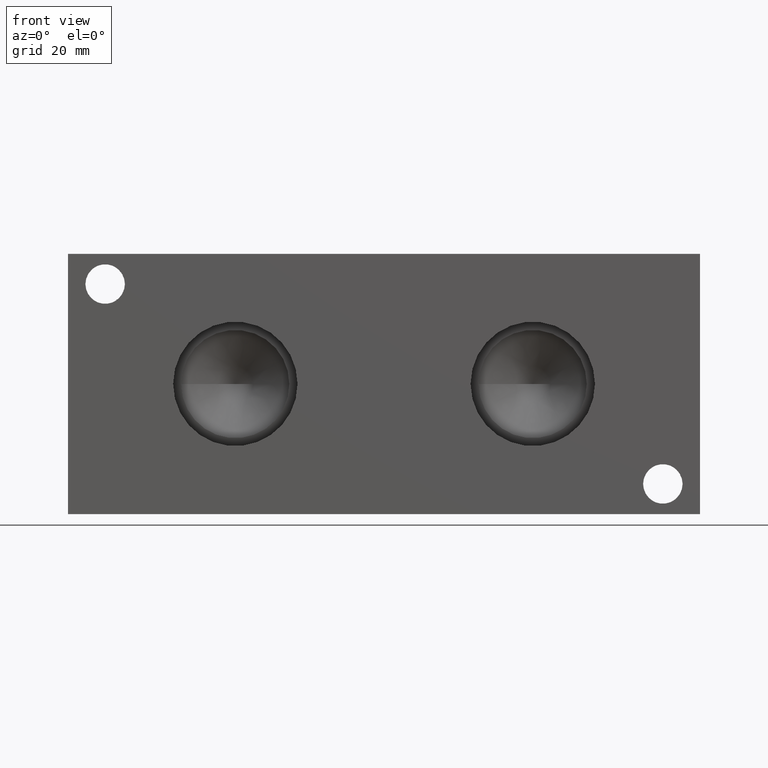
[diagram: clean part render]
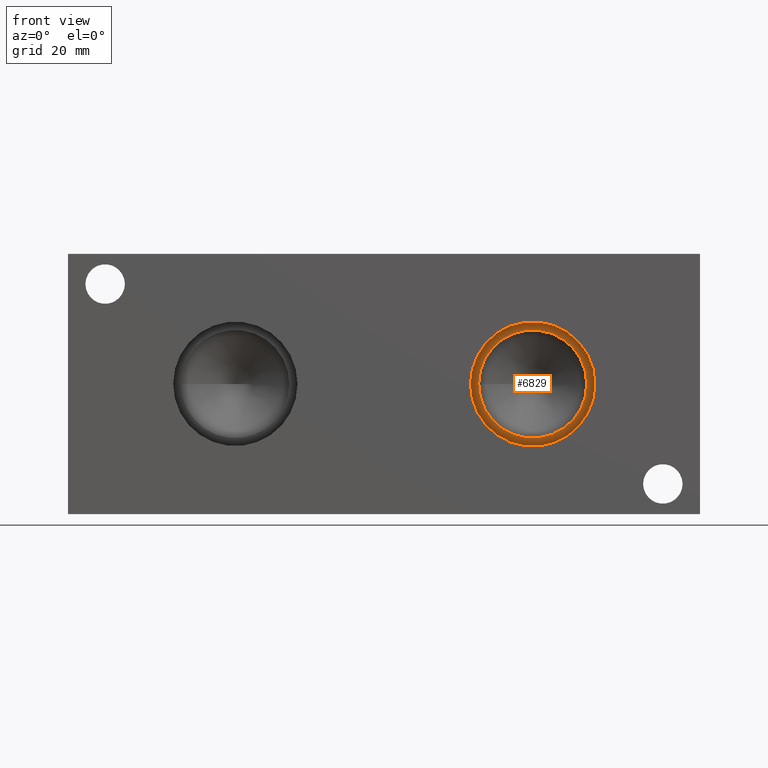
[diagram: same view with one face highlighted and labeled with its STEP entity id]
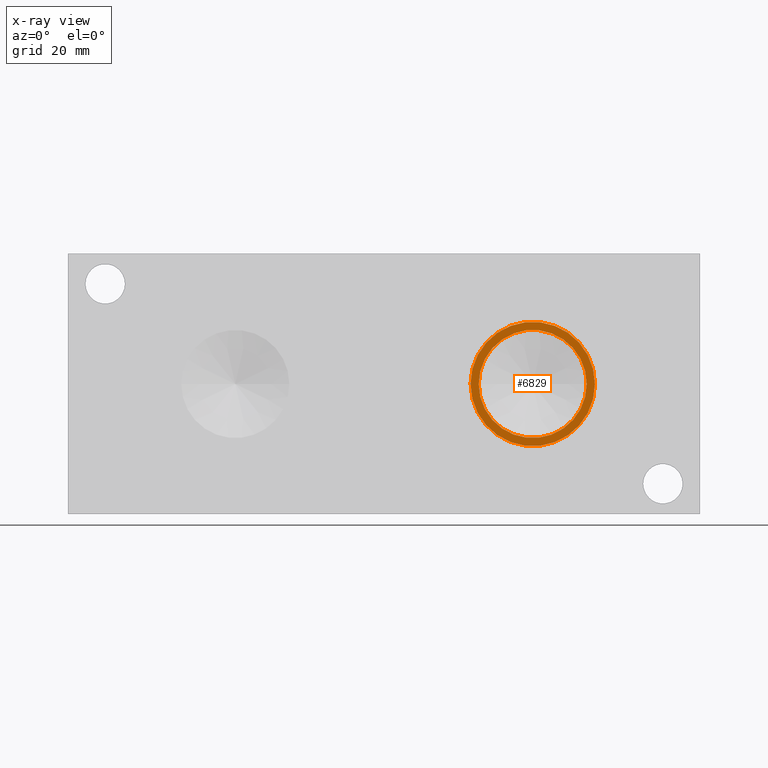
[diagram: x-ray of the same camera — body ghosted, the highlighted face saturated]
A machine part, front view. The second image highlights one B-rep face of the part: STEP entity #6829.
The next image is the same camera in x-ray: the body ghosted, the highlighted face saturated — about 0% of this face is hidden behind the body in this view.
In plain terms, the highlighted planar face has unit normal (0, -1, 0).
Its self-contained STEP definition (entity closure, byte-faithful):
#79=CIRCLE('',#7116,21.2344);
#80=CIRCLE('',#7117,21.2344);
#81=CIRCLE('',#7118,18.4531);
#452=FACE_BOUND('',#1168,.T.);
#786=FACE_OUTER_BOUND('',#1167,.T.);
#1167=EDGE_LOOP('',(#5856,#5857));
#1168=EDGE_LOOP('',(#5858));
#3140=VERTEX_POINT('',#11619);
#3141=VERTEX_POINT('',#11620);
#3142=VERTEX_POINT('',#11623);
#4058=EDGE_CURVE('',#3140,#3141,#79,.T.);
#4059=EDGE_CURVE('',#3141,#3140,#80,.T.);
#4060=EDGE_CURVE('',#3142,#3142,#81,.T.);
#5856=ORIENTED_EDGE('',*,*,#4058,.T.);
#5857=ORIENTED_EDGE('',*,*,#4059,.T.);
#5858=ORIENTED_EDGE('',*,*,#4060,.F.);
#6199=PLANE('',#7115);
#6829=ADVANCED_FACE('',(#786,#452),#6199,.T.);
#7115=AXIS2_PLACEMENT_3D('',#11618,#8311,#8312);
#7116=AXIS2_PLACEMENT_3D('',#11621,#8313,#8314);
#7117=AXIS2_PLACEMENT_3D('',#11622,#8315,#8316);
#7118=AXIS2_PLACEMENT_3D('',#11624,#8317,#8318);
#8311=DIRECTION('center_axis',(0.,-1.,0.));
#8312=DIRECTION('ref_axis',(1.,0.,0.));
#8313=DIRECTION('center_axis',(0.,-1.,0.));
#8314=DIRECTION('ref_axis',(1.,0.,0.));
#8315=DIRECTION('center_axis',(0.,-1.,0.));
#8316=DIRECTION('ref_axis',(1.,0.,0.));
#8317=DIRECTION('center_axis',(0.,-1.,0.));
#8318=DIRECTION('ref_axis',(1.,0.,0.));
#11618=CARTESIAN_POINT('Origin',(158.75,19.5072,44.45));
#11619=CARTESIAN_POINT('',(179.9844,19.5072,44.45));
#11620=CARTESIAN_POINT('',(137.5156,19.5072,44.45));
#11621=CARTESIAN_POINT('Origin',(158.75,19.5072,44.45));
#11622=CARTESIAN_POINT('Origin',(158.75,19.5072,44.45));
#11623=CARTESIAN_POINT('',(140.2969,19.5072,44.45));
#11624=CARTESIAN_POINT('Origin',(158.75,19.5072,44.45));